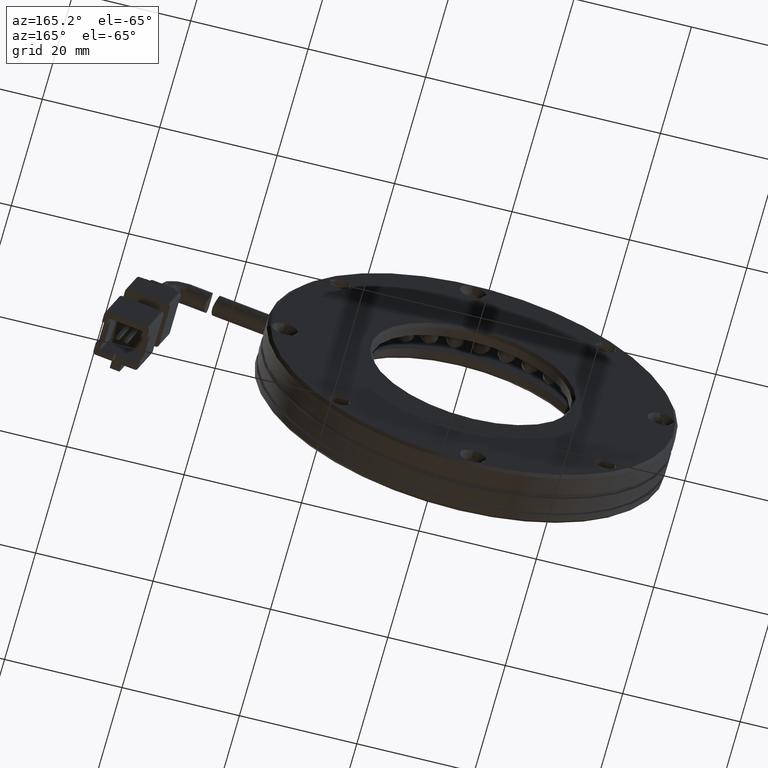
[diagram: clean part render]
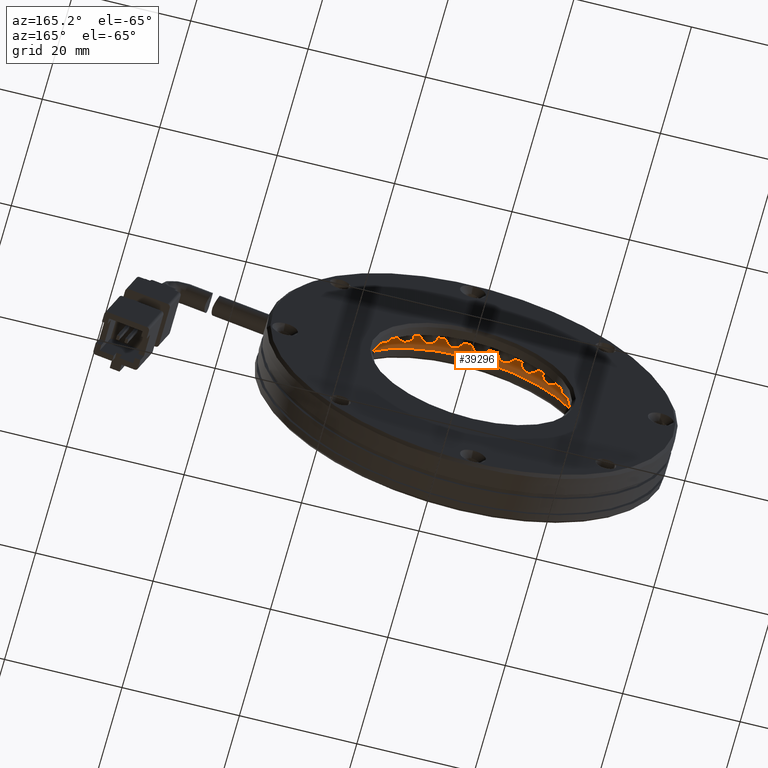
[diagram: same view with one face highlighted and labeled with its STEP entity id]
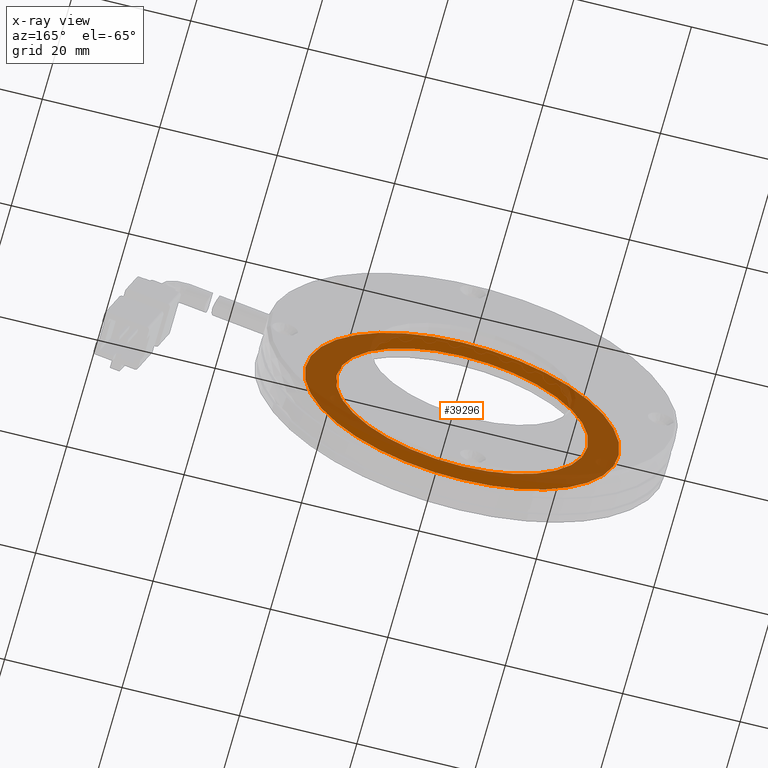
[diagram: x-ray of the same camera — body ghosted, the highlighted face saturated]
A machine part, auxiliary view. The second image highlights one B-rep face of the part: STEP entity #39296.
The next image is the same camera in x-ray: the body ghosted, the highlighted face saturated — about 61% of this face is hidden behind the body in this view.
In plain terms, the highlighted planar face has unit normal (0, -1, 0).
Its self-contained STEP definition (entity closure, byte-faithful):
#1006 = PLANE ( 'NONE',  #7881 ) ;
#2309 = CIRCLE ( 'NONE', #11495, 26.80000000000000100 ) ;
#2619 = CARTESIAN_POINT ( 'NONE',  ( -5.709292144904561700, 6.260202915404280000, -26.80000000000000100 ) ) ;
#3336 = DIRECTION ( 'NONE',  ( -0.0000000000000000000, -1.000000000000000000, -0.0000000000000000000 ) ) ;
#4720 = CARTESIAN_POINT ( 'NONE',  ( -5.709292144904562600, 6.260202915404280000, 21.50000000000000000 ) ) ;
#7881 = AXIS2_PLACEMENT_3D ( 'NONE', #13468, #35268, #16602 ) ;
#7885 = EDGE_CURVE ( 'NONE', #26472, #25785, #2309, .T. ) ;
#10257 = ORIENTED_EDGE ( 'NONE', *, *, #23713, .T. ) ;
#10281 = CARTESIAN_POINT ( 'NONE',  ( -5.709292144904565300, 6.260202915404280000, 0.0000000000000000000 ) ) ;
#11495 = AXIS2_PLACEMENT_3D ( 'NONE', #16757, #38539, #19889 ) ;
#12043 = CARTESIAN_POINT ( 'NONE',  ( -5.709292144904565300, 6.260202915404280000, 26.80000000000000100 ) ) ;
#13390 = DIRECTION ( 'NONE',  ( 0.0000000000000000000, 0.0000000000000000000, 1.000000000000000000 ) ) ;
#13468 = CARTESIAN_POINT ( 'NONE',  ( -27.20929214490456600, 6.260202915404280000, 0.0000000000000000000 ) ) ;
#14056 = AXIS2_PLACEMENT_3D ( 'NONE', #21935, #3336, #25104 ) ;
#14919 = VERTEX_POINT ( 'NONE', #32043 ) ;
#15130 = EDGE_LOOP ( 'NONE', ( #10257, #26741 ) ) ;
#16602 = DIRECTION ( 'NONE',  ( 0.0000000000000000000, -0.0000000000000000000, -1.000000000000000000 ) ) ;
#16757 = CARTESIAN_POINT ( 'NONE',  ( -5.709292144904565300, 6.260202915404280000, 0.0000000000000000000 ) ) ;
#16769 = CIRCLE ( 'NONE', #23830, 26.80000000000000100 ) ;
#17288 = CARTESIAN_POINT ( 'NONE',  ( -5.709292144904565300, 6.260202915404280000, 0.0000000000000000000 ) ) ;
#19889 = DIRECTION ( 'NONE',  ( 0.0000000000000000000, 0.0000000000000000000, 1.000000000000000000 ) ) ;
#19916 = EDGE_CURVE ( 'NONE', #25785, #26472, #16769, .T. ) ;
#20083 = VERTEX_POINT ( 'NONE', #4720 ) ;
#20425 = DIRECTION ( 'NONE',  ( 0.0000000000000000000, 0.0000000000000000000, -1.000000000000000000 ) ) ;
#21935 = CARTESIAN_POINT ( 'NONE',  ( -5.709292144904565300, 6.260202915404280000, 0.0000000000000000000 ) ) ;
#23677 = CIRCLE ( 'NONE', #14056, 21.50000000000000000 ) ;
#23713 = EDGE_CURVE ( 'NONE', #14919, #20083, #23677, .T. ) ;
#23830 = AXIS2_PLACEMENT_3D ( 'NONE', #10281, #32055, #13390 ) ;
#23886 = EDGE_CURVE ( 'NONE', #20083, #14919, #32905, .T. ) ;
#25104 = DIRECTION ( 'NONE',  ( 0.0000000000000000000, 0.0000000000000000000, -1.000000000000000000 ) ) ;
#25231 = FACE_BOUND ( 'NONE', #15130, .T. ) ;
#25785 = VERTEX_POINT ( 'NONE', #2619 ) ;
#26472 = VERTEX_POINT ( 'NONE', #12043 ) ;
#26741 = ORIENTED_EDGE ( 'NONE', *, *, #23886, .T. ) ;
#29592 = ORIENTED_EDGE ( 'NONE', *, *, #19916, .F. ) ;
#29712 = EDGE_LOOP ( 'NONE', ( #33691, #29592 ) ) ;
#32043 = CARTESIAN_POINT ( 'NONE',  ( -5.709292144904565300, 6.260202915404280000, -21.50000000000000000 ) ) ;
#32055 = DIRECTION ( 'NONE',  ( 0.0000000000000000000, -1.000000000000000000, 0.0000000000000000000 ) ) ;
#32071 = AXIS2_PLACEMENT_3D ( 'NONE', #17288, #39076, #20425 ) ;
#32905 = CIRCLE ( 'NONE', #32071, 21.50000000000000000 ) ;
#33496 = FACE_OUTER_BOUND ( 'NONE', #29712, .T. ) ;
#33691 = ORIENTED_EDGE ( 'NONE', *, *, #7885, .F. ) ;
#35268 = DIRECTION ( 'NONE',  ( 0.0000000000000000000, -1.000000000000000000, 0.0000000000000000000 ) ) ;
#38539 = DIRECTION ( 'NONE',  ( 0.0000000000000000000, -1.000000000000000000, 0.0000000000000000000 ) ) ;
#39076 = DIRECTION ( 'NONE',  ( -0.0000000000000000000, -1.000000000000000000, -0.0000000000000000000 ) ) ;
#39296 = ADVANCED_FACE ( 'NONE', ( #33496, #25231 ), #1006, .F. ) ;